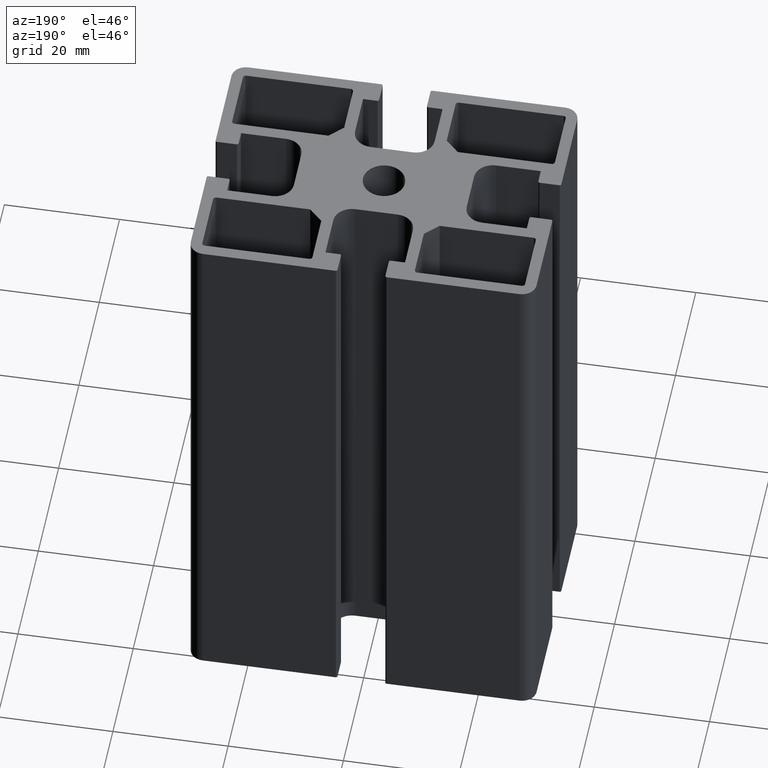
[diagram: clean part render]
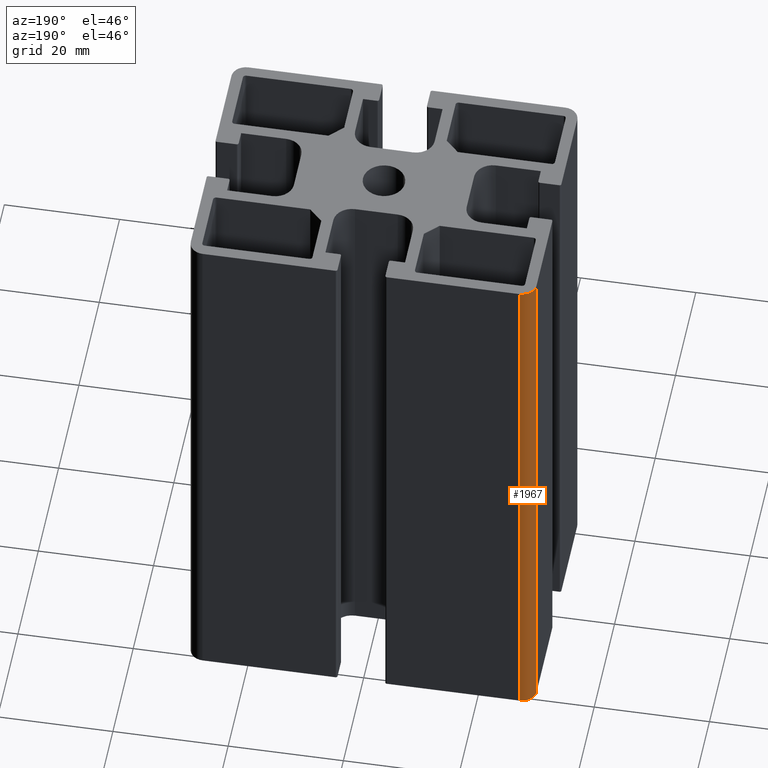
[diagram: same view with one face highlighted and labeled with its STEP entity id]
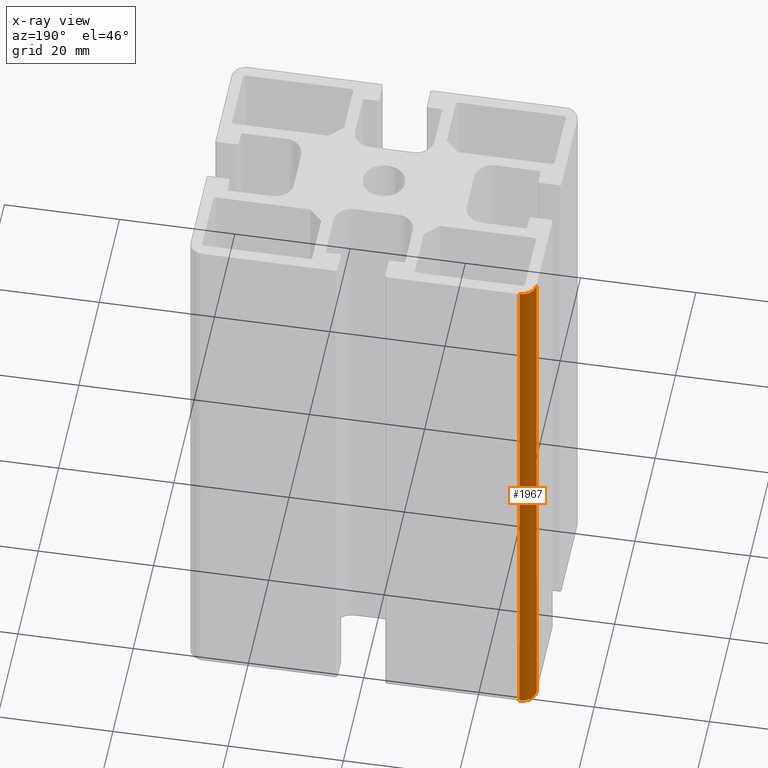
[diagram: x-ray of the same camera — body ghosted, the highlighted face saturated]
A machine part, auxiliary view. The second image highlights one B-rep face of the part: STEP entity #1967.
The next image is the same camera in x-ray: the body ghosted, the highlighted face saturated — about 0% of this face is hidden behind the body in this view.
In plain terms, the highlighted cylindrical surface (edge-blend (fillet) strip) has radius 2.5 mm, axis along (0, 0, 1).
Its self-contained STEP definition (entity closure, byte-faithful):
#68=CIRCLE('',#2073,2.50000000000002);
#96=CIRCLE('',#2139,2.50000000000002);
#137=CYLINDRICAL_SURFACE('',#2138,2.50000000000002);
#220=FACE_OUTER_BOUND('',#325,.T.);
#325=EDGE_LOOP('',(#1633,#1634,#1635,#1636));
#524=LINE('',#3226,#732);
#525=LINE('',#3230,#733);
#732=VECTOR('',#2628,100.);
#733=VECTOR('',#2633,100.);
#878=VERTEX_POINT('',#3024);
#879=VERTEX_POINT('',#3026);
#941=VERTEX_POINT('',#3224);
#942=VERTEX_POINT('',#3228);
#1104=EDGE_CURVE('',#878,#879,#68,.T.);
#1204=EDGE_CURVE('',#941,#878,#524,.T.);
#1205=EDGE_CURVE('',#942,#941,#96,.T.);
#1206=EDGE_CURVE('',#942,#879,#525,.T.);
#1633=ORIENTED_EDGE('',*,*,#1204,.F.);
#1634=ORIENTED_EDGE('',*,*,#1205,.F.);
#1635=ORIENTED_EDGE('',*,*,#1206,.T.);
#1636=ORIENTED_EDGE('',*,*,#1104,.F.);
#1967=ADVANCED_FACE('',(#220),#137,.T.);
#2073=AXIS2_PLACEMENT_3D('',#3027,#2426,#2427);
#2138=AXIS2_PLACEMENT_3D('',#3227,#2629,#2630);
#2139=AXIS2_PLACEMENT_3D('',#3229,#2631,#2632);
#2426=DIRECTION('center_axis',(0.,0.,-1.));
#2427=DIRECTION('ref_axis',(0.,-1.,0.));
#2628=DIRECTION('',(0.,0.,-1.));
#2629=DIRECTION('center_axis',(0.,0.,1.));
#2630=DIRECTION('ref_axis',(0.,-1.,0.));
#2631=DIRECTION('center_axis',(0.,0.,1.));
#2632=DIRECTION('ref_axis',(0.,-1.,0.));
#2633=DIRECTION('',(0.,0.,-1.));
#3024=CARTESIAN_POINT('',(-30.,20.0000000000007,-50.));
#3026=CARTESIAN_POINT('',(-27.5,22.5000000000007,-50.));
#3027=CARTESIAN_POINT('Origin',(-27.5,20.0000000000007,-50.));
#3224=CARTESIAN_POINT('',(-30.,20.0000000000007,50.));
#3226=CARTESIAN_POINT('',(-30.,20.0000000000007,0.));
#3227=CARTESIAN_POINT('Origin',(-27.5,20.0000000000007,0.));
#3228=CARTESIAN_POINT('',(-27.5,22.5000000000007,50.));
#3229=CARTESIAN_POINT('Origin',(-27.5,20.0000000000007,50.));
#3230=CARTESIAN_POINT('',(-27.5,22.5000000000007,0.));